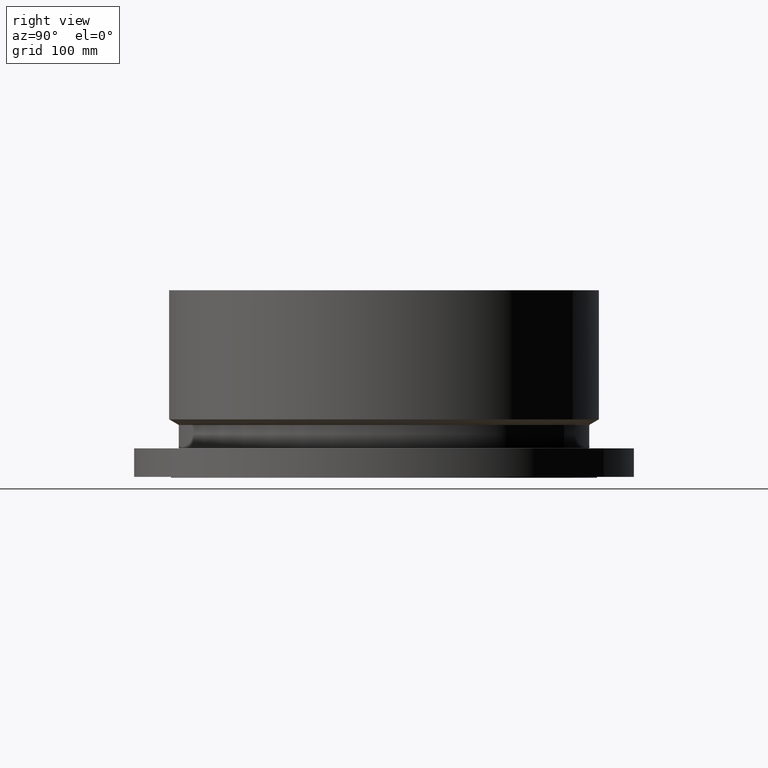
[diagram: clean part render]
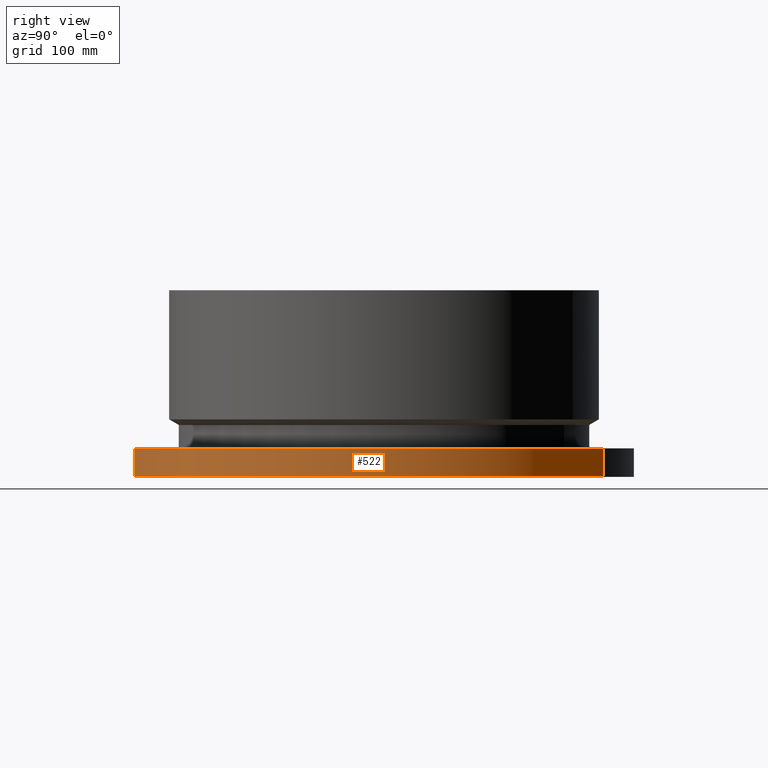
[diagram: same view with one face highlighted and labeled with its STEP entity id]
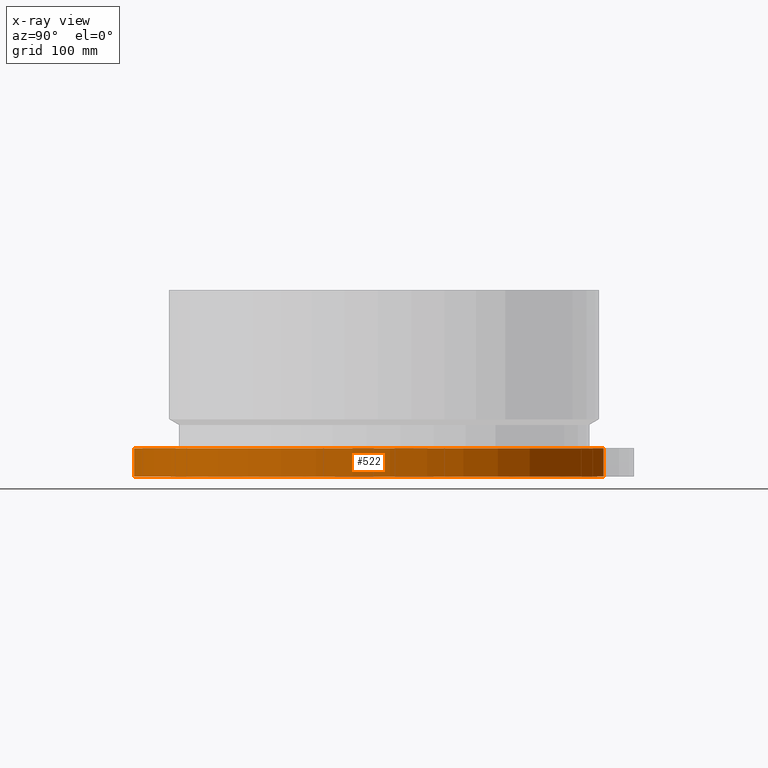
[diagram: x-ray of the same camera — body ghosted, the highlighted face saturated]
A machine part, right view. The second image highlights one B-rep face of the part: STEP entity #522.
The next image is the same camera in x-ray: the body ghosted, the highlighted face saturated — about 0% of this face is hidden behind the body in this view.
In plain terms, the highlighted cylindrical surface (partial cylindrical patch) has radius 406.4 mm, axis along (0, 0, -1).
Its self-contained STEP definition (entity closure, byte-faithful):
#91=AXIS2_PLACEMENT_3D('Circle Axis2P3D',#89,#90,$) ;
#483=AXIS2_PLACEMENT_3D('Cylinder Axis2P3D',#480,#481,#482) ;
#513=AXIS2_PLACEMENT_3D('Circle Axis2P3D',#511,#512,$) ;
#84=CARTESIAN_POINT('Vertex',(-7.6708086177,-14.0413209903,2.23792987641E-015)) ;
#86=CARTESIAN_POINT('Vertex',(7.6708086177,14.0413209903,2.23792987641E-015)) ;
#89=CARTESIAN_POINT('Axis2P3D Location',(0.,0.,0.)) ;
#480=CARTESIAN_POINT('Axis2P3D Location',(0.,0.,5.93750000002)) ;
#485=CARTESIAN_POINT('Line Origine',(-7.6708086177,-14.0413209903,0.908750000004)) ;
#489=CARTESIAN_POINT('Vertex',(-7.6708086177,-14.0413209903,1.81750000001)) ;
#496=CARTESIAN_POINT('Vertex',(7.6708086177,14.0413209903,1.81750000001)) ;
#499=CARTESIAN_POINT('Line Origine',(7.6708086177,14.0413209903,0.908750000004)) ;
#511=CARTESIAN_POINT('Axis2P3D Location',(0.,0.,1.81750000001)) ;
#90=DIRECTION('Axis2P3D Direction',(0.,0.,-0.0393700787402)) ;
#481=DIRECTION('Axis2P3D Direction',(0.,0.,-0.0393700787402)) ;
#482=DIRECTION('Axis2P3D XDirection',(0.0188750212049,0.0345504945626,0.)) ;
#486=DIRECTION('Vector Direction',(0.,0.,-0.0393700787402)) ;
#500=DIRECTION('Vector Direction',(0.,0.,-0.0393700787402)) ;
#512=DIRECTION('Axis2P3D Direction',(0.,0.,-0.0393700787402)) ;
#487=VECTOR('Line Direction',#486,0.0393700787402) ;
#501=VECTOR('Line Direction',#500,0.0393700787402) ;
#517=ORIENTED_EDGE('',*,*,#93,.F.) ;
#518=ORIENTED_EDGE('',*,*,#503,.T.) ;
#519=ORIENTED_EDGE('',*,*,#515,.T.) ;
#520=ORIENTED_EDGE('',*,*,#491,.F.) ;
#522=ADVANCED_FACE('PartBody',(#521),#484,.T.) ;
#92=CIRCLE('generated circle',#91,16.0000000001) ;
#514=CIRCLE('generated circle',#513,16.0000000001) ;
#484=CYLINDRICAL_SURFACE('generated cylinder',#483,16.0000000001) ;
#93=EDGE_CURVE('',#87,#85,#92,.T.) ;
#491=EDGE_CURVE('',#85,#490,#488,.F.) ;
#503=EDGE_CURVE('',#87,#497,#502,.F.) ;
#515=EDGE_CURVE('',#497,#490,#514,.T.) ;
#516=EDGE_LOOP('',(#517,#518,#519,#520)) ;
#521=FACE_OUTER_BOUND('',#516,.T.) ;
#488=LINE('Line',#485,#487) ;
#502=LINE('Line',#499,#501) ;
#85=VERTEX_POINT('',#84) ;
#87=VERTEX_POINT('',#86) ;
#490=VERTEX_POINT('',#489) ;
#497=VERTEX_POINT('',#496) ;